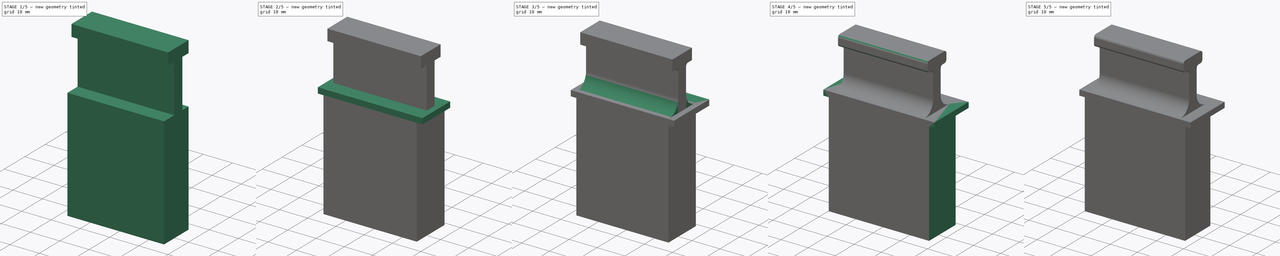
[diagram: build sequence overview — one tinted view per stage of 5, left to right]
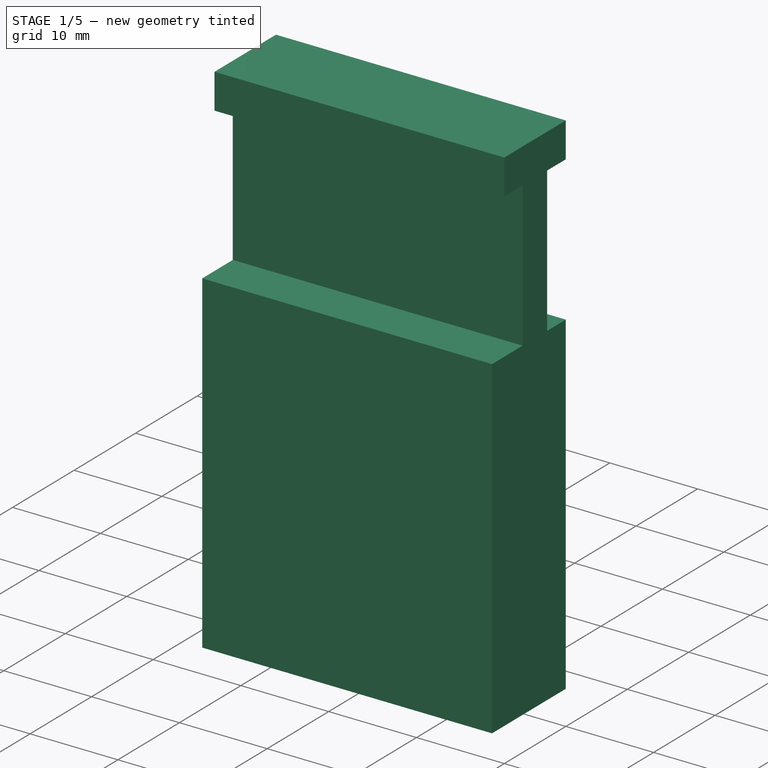
[diagram: stage 1 of 5 — iso view after this stage's code; geometry added in this stage tinted green]
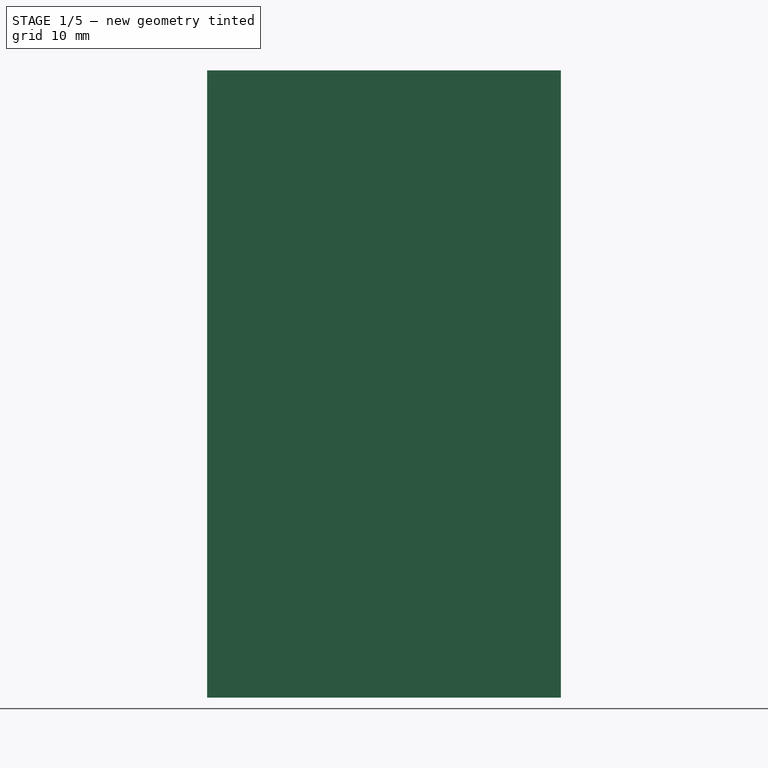
[diagram: stage 1 of 5 — front view after this stage's code; geometry added in this stage tinted green]
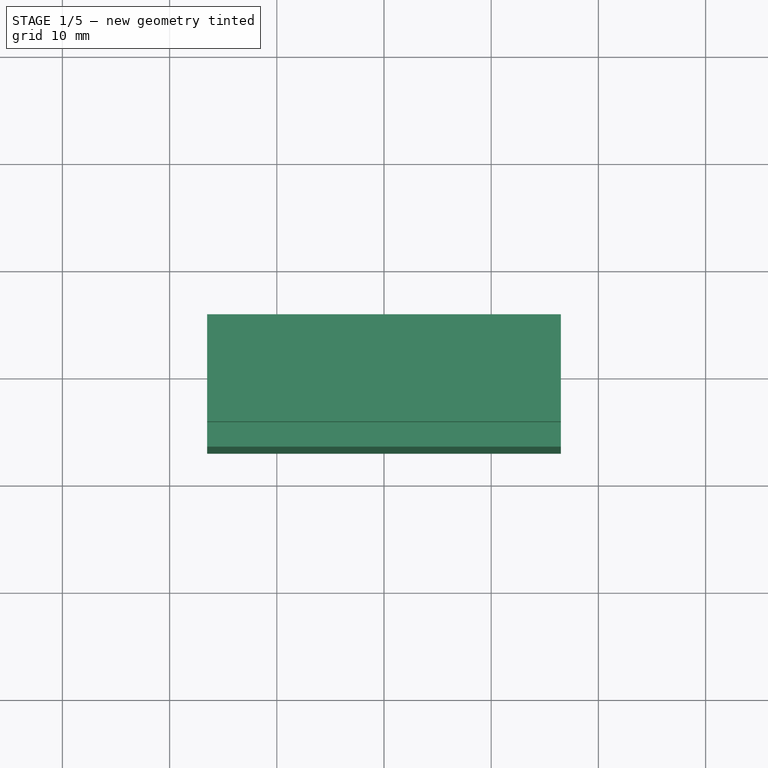
[diagram: stage 1 of 5 — top view after this stage's code; geometry added in this stage tinted green]
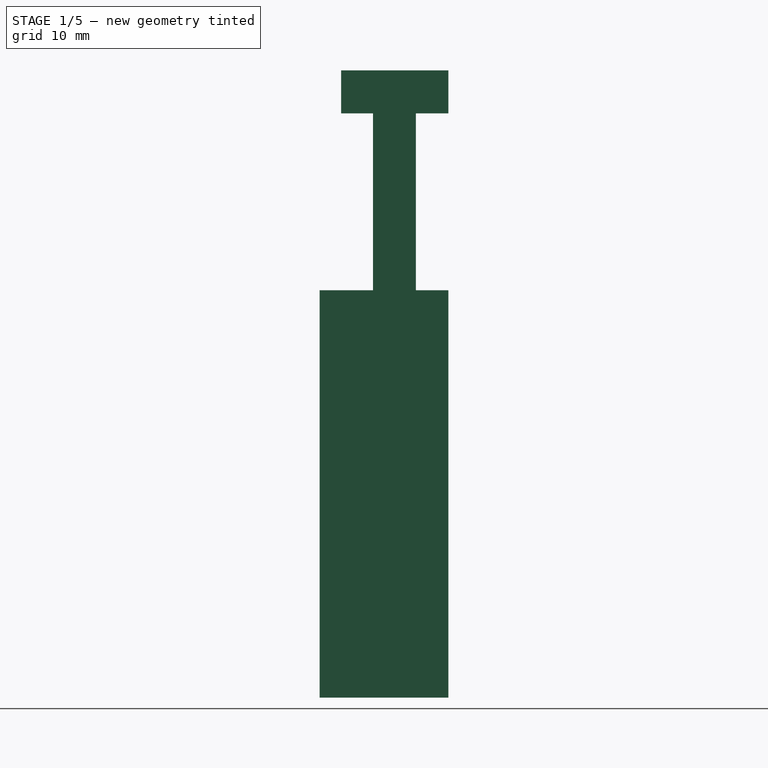
[diagram: stage 1 of 5 — right view after this stage's code; geometry added in this stage tinted green]
FCSTD DOCUMENT  (FreeCAD 1.0R38806 (Git))
Label: SmallStdd
License: All rights reserved
LicenseURL: https://en.wikipedia.org/wiki/All_rights_reserved
objects: PartDesign::Pad×13, Sketcher::SketchObject×11, PartDesign::Fillet×9, PartDesign::Pocket×5, PartDesign::Body×1
note: 104 computed .brp shape members not serialized (recipe doc carries the construction recipe); baked Part::Feature solids carry a one-line shape summary decoded from their .brp

FEATURE [Sketcher::SketchObject] Sketch
  ArcFitTolerance = 1e-06
  AttachmentSupport = -> [XY_Plane]
  FullyConstrained = true
  MakeInternals = false
  MapMode = 5
  sketch-geometry (5):
    g0: LineSegment StartX=-16.5 StartY=-7 StartZ=0 EndX=16.5 EndY=-7 EndZ=0
    g1: LineSegment StartX=16.5 StartY=-7 StartZ=0 EndX=16.5 EndY=7 EndZ=0
    g2: LineSegment StartX=16.5 StartY=7 StartZ=0 EndX=-16.5 EndY=7 EndZ=0
    g3: LineSegment StartX=-16.5 StartY=7 StartZ=0 EndX=-16.5 EndY=-7 EndZ=0
    g4: GeomPoint [constr] X=0 Y=0 Z=0
  constraints (12):
    c: Coincident(g0,g1)
    c: Coincident(g1,g2)
    c: Coincident(g2,g3)
    c: Coincident(g3,g0)
    c: Horizontal(g0)
    c: Horizontal(g2)
    c: Vertical(g1)
    c: Vertical(g3)
    c: Symmetric(g2,g0,g4)
    c: Distance(g1,g3) = 33
    c: Distance(g0,g2) = 14
    c: Coincident(g4,g-1)
FEATURE [PartDesign::Pad] Pad
  Direction = (0,0,1)
  Length = 38
  Length2 = 10
  Profile = -> Sketch
  ReferenceAxis = -> Sketch [N_Axis]
  Refine = true
  Suppressed = false
  Type = 0
FEATURE [Sketcher::SketchObject] Sketch001
  ArcFitTolerance = 1e-06
  AttachmentSupport = -> [Pad]
  FullyConstrained = false
  MakeInternals = false
  MapMode = 5
  Placement = pos=(16.5,0,0) rot=(0.57735,0.57735,0.57735;2.0944rad)
  sketch-geometry (4):
    g0: LineSegment StartX=-2.02597 StartY=0 StartZ=0 EndX=1.97403 EndY=0 EndZ=0
    g1: LineSegment StartX=1.97403 StartY=0 StartZ=0 EndX=1.97403 EndY=58.5 EndZ=0
    g2: LineSegment StartX=1.97403 StartY=58.5 StartZ=0 EndX=-2.02597 EndY=58.5 EndZ=0
    g3: LineSegment StartX=-2.02597 StartY=58.5 StartZ=0 EndX=-2.02597 EndY=0 EndZ=0
  constraints (11):
    c: Coincident(g0,g1)
    c: Coincident(g1,g2)
    c: Coincident(g2,g3)
    c: Coincident(g3,g0)
    c: Horizontal(g0)
    c: Horizontal(g2)
    c: Vertical(g1)
    c: Vertical(g3)
    c: Distance(g1,g3) = 4
    c: Distance(g0,g2) = 58.5
    c: PointOnObject(g0,g-1)
FEATURE [PartDesign::Pad] Pad001
  BaseFeature = -> Pad
  Direction = (1,0,0)
  Length = 33
  Length2 = 10
  Profile = -> Sketch001
  ReferenceAxis = -> Sketch001 [N_Axis]
  Refine = true
  Reversed = true
  Suppressed = false
  Type = 0
FEATURE [Sketcher::SketchObject] Sketch002
  ArcFitTolerance = 1e-06
  AttachmentSupport = -> [Pad001]
  FullyConstrained = true
  MakeInternals = false
  MapMode = 5
  Placement = pos=(16.5,0,0) rot=(0.57735,0.57735,0.57735;2.0944rad)
  sketch-geometry (5):
    g0: LineSegment StartX=-5 StartY=54.5 StartZ=0 EndX=5 EndY=54.5 EndZ=0
    g1: LineSegment StartX=5 StartY=54.5 StartZ=0 EndX=5 EndY=58.5 EndZ=0
    g2: LineSegment StartX=5 StartY=58.5 StartZ=0 EndX=-5 EndY=58.5 EndZ=0
    g3: LineSegment StartX=-5 StartY=58.5 StartZ=0 EndX=-5 EndY=54.5 EndZ=0
    g4: GeomPoint [constr] X=0 Y=56.5 Z=0
  constraints (13):
    c: Coincident(g0,g1)
    c: Coincident(g1,g2)
    c: Coincident(g2,g3)
    c: Coincident(g3,g0)
    c: Horizontal(g0)
    c: Horizontal(g2)
    c: Vertical(g1)
    c: Vertical(g3)
    c: Symmetric(g2,g0,g4)
    c: Distance(g1,g3) = 10
    c: Distance(g0,g2) = 4
    c: PointOnObject(g4,g-2)
    c: DistanceY(g-1,g4) = 56.5
FEATURE [PartDesign::Pad] Pad002
  BaseFeature = -> Pad001
  Direction = (1,0,0)
  Length = 33
  Length2 = 10
  Profile = -> Sketch002
  ReferenceAxis = -> Sketch002 [N_Axis]
  Refine = true
  Reversed = true
  Suppressed = false
  Type = 0
FEATURE [Sketcher::SketchObject] Sketch003
  ArcFitTolerance = 1e-06
  AttachmentSupport = -> [Pad002]
  FullyConstrained = true
  MakeInternals = false
  MapMode = 5
  Placement = pos=(0,7,0) rot=(0,0.707107,0.707107;3.14159rad)
  sketch-geometry (15):
    g0: LineSegment StartX=-16 StartY=30.8 StartZ=0 EndX=16 EndY=30.8 EndZ=0
    g1: LineSegment StartX=16 StartY=30.8 StartZ=0 EndX=16 EndY=35.8 EndZ=0
    g2: LineSegment StartX=16 StartY=35.8 StartZ=0 EndX=-16 EndY=35.8 EndZ=0
    g3: LineSegment StartX=-16 StartY=35.8 StartZ=0 EndX=-16 EndY=30.8 EndZ=0
    g4: GeomPoint [constr] X=0 Y=33.3 Z=0
    g5: LineSegment StartX=-16 StartY=19.4 StartZ=0 EndX=16 EndY=19.4 EndZ=0
    g6: LineSegment StartX=16 StartY=19.4 StartZ=0 EndX=16 EndY=28.4 EndZ=0
    g7: LineSegment StartX=16 StartY=28.4 StartZ=0 EndX=-16 EndY=28.4 EndZ=0
    g8: LineSegment StartX=-16 StartY=28.4 StartZ=0 EndX=-16 EndY=19.4 EndZ=0
    g9: GeomPoint [constr] X=0 Y=23.9 Z=0
    g10: LineSegment StartX=-16 StartY=3 StartZ=0 EndX=16 EndY=3 EndZ=0
    g11: LineSegment StartX=16 StartY=3 StartZ=0 EndX=16 EndY=17 EndZ=0
    g12: LineSegment StartX=16 StartY=17 StartZ=0 EndX=-16 EndY=17 EndZ=0
    g13: LineSegment StartX=-16 StartY=17 StartZ=0 EndX=-16 EndY=3 EndZ=0
    g14: GeomPoint [constr] X=0 Y=10 Z=0
  constraints (39):
    c: Coincident(g0,g1)
    c: Coincident(g1,g2)
    c: Coincident(g2,g3)
    c: Coincident(g3,g0)
    c: Horizontal(g0)
    c: Horizontal(g2)
    c: Vertical(g1)
    c: Vertical(g3)
    c: Symmetric(g2,g0,g4)
    c: Distance(g1,g3) = 32
    c: Distance(g0,g2) = 5
    c: PointOnObject(g4,g-2)
    c: Coincident(g5,g6)
    c: Coincident(g6,g7)
    c: Coincident(g7,g8)
    c: Coincident(g8,g5)
    c: Horizontal(g5)
    c: Horizontal(g7)
    c: Vertical(g6)
    c: Vertical(g8)
    c: Symmetric(g7,g5,g9)
    c: Distance(g6,g8) = 32
    c: Distance(g5,g7) = 9
    c: PointOnObject(g9,g-2)
    c: Coincident(g10,g11)
    c: Coincident(g11,g12)
    c: Coincident(g12,g13)
    c: Coincident(g13,g10)
    c: Horizontal(g10)
    c: Horizontal(g12)
    c: Vertical(g11)
    c: Vertical(g13)
    c: Symmetric(g12,g10,g14)
    c: Distance(g11,g13) = 32
    c: Distance(g10,g12) = 14
    c: PointOnObject(g14,g-2)
    c: Distance(g-1,g10) = 3
    c: Distance(g12,g5) = 2.4
    c: Distance(g0,g7) = 2.4
FEATURE [PartDesign::Pocket] Pocket
  BaseFeature = -> Pad002
  Direction = (0,-1,2e-16)
  Length = 12
  Length2 = 5
  Profile = -> Sketch003
  ReferenceAxis = -> Sketch003 [N_Axis]
  Refine = true
  Suppressed = false
  Type = 0
FEATURE [PartDesign::Pocket] Pocket001
  BaseFeature = -> Pocket
  Direction = (0,-1,0)
  Length = 2
  Length2 = 5
  Profile = -> Pocket [Face14]
  Refine = true
  Suppressed = false
  Type = 0
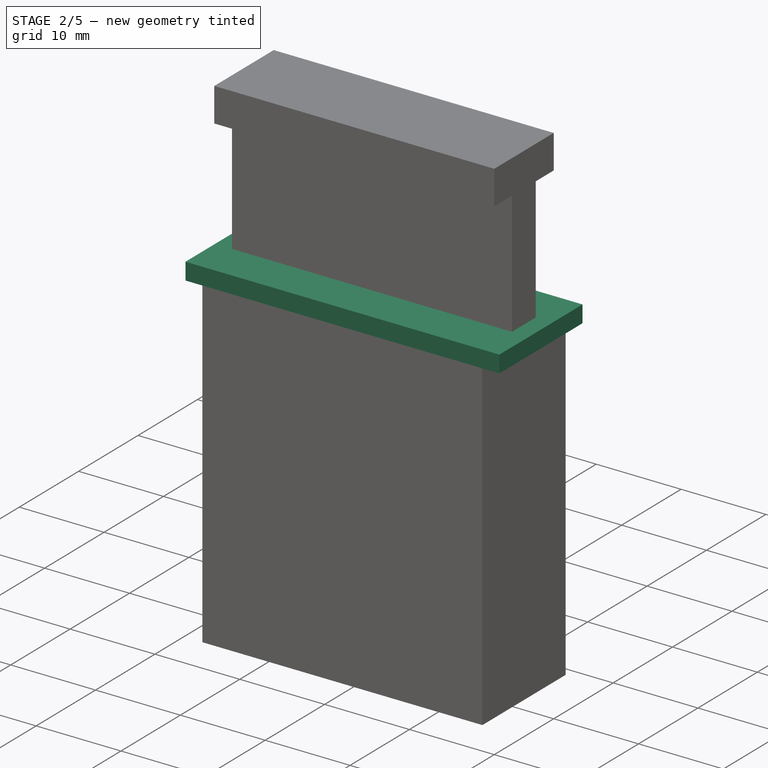
[diagram: stage 2 of 5 — iso view after this stage's code; geometry added in this stage tinted green]
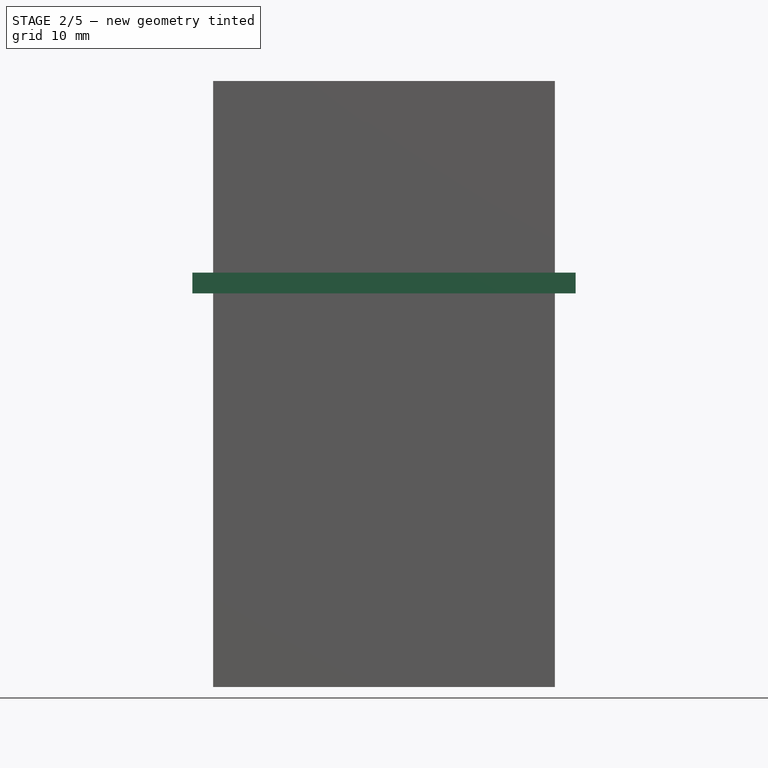
[diagram: stage 2 of 5 — front view after this stage's code; geometry added in this stage tinted green]
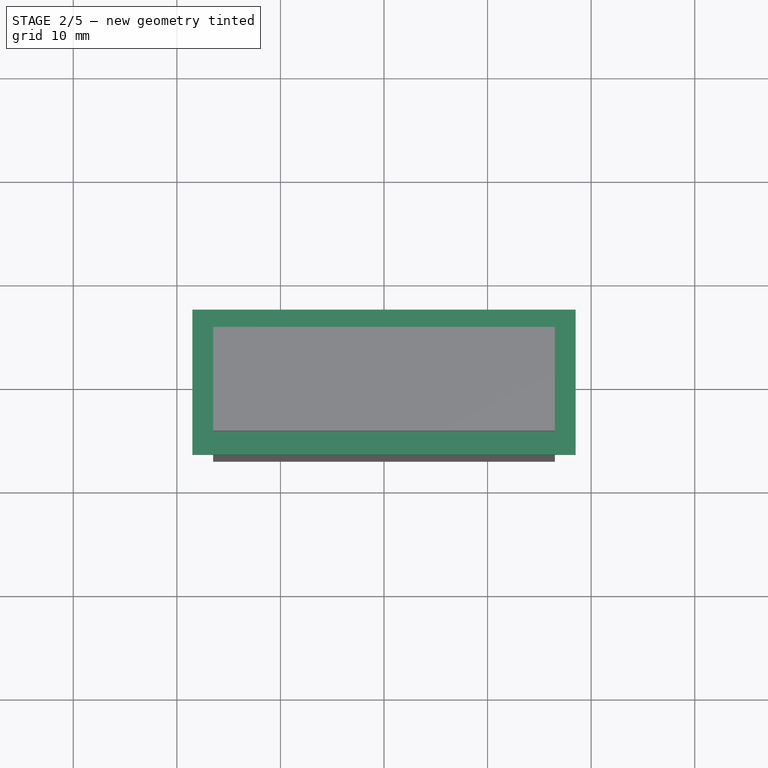
[diagram: stage 2 of 5 — top view after this stage's code; geometry added in this stage tinted green]
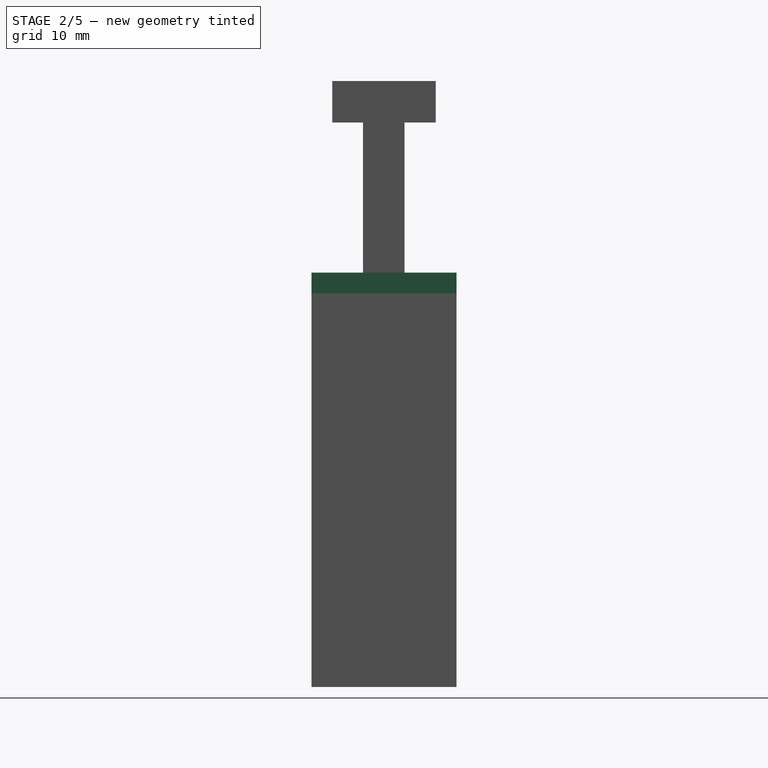
[diagram: stage 2 of 5 — right view after this stage's code; geometry added in this stage tinted green]
FEATURE [Sketcher::SketchObject] Sketch004
  ArcFitTolerance = 1e-06
  AttachmentSupport = -> [Pocket001]
  ExternalGeometry = -> [Pocket001]
  FullyConstrained = true
  MakeInternals = false
  MapMode = 5
  Placement = pos=(0,5,0) rot=(0,0.707107,0.707107;3.14159rad)
  sketch-geometry (19):
    g0: LineSegment StartX=-16 StartY=35.8 StartZ=0 EndX=-16 EndY=31.8 EndZ=0
    g1: LineSegment StartX=-16 StartY=31.8 StartZ=0 EndX=16 EndY=31.8 EndZ=0
    g2: LineSegment StartX=16 StartY=31.8 StartZ=0 EndX=16 EndY=35.8 EndZ=0
    g3: LineSegment StartX=16 StartY=35.8 StartZ=0 EndX=-16 EndY=35.8 EndZ=0
    g4: GeomPoint [constr] X=0 Y=33.8 Z=0
    g5: LineSegment StartX=-16 StartY=28.4 StartZ=0 EndX=-16 EndY=20.4 EndZ=0
    g6: LineSegment StartX=-16 StartY=20.4 StartZ=0 EndX=16 EndY=20.4 EndZ=0
    g7: LineSegment StartX=16 StartY=20.4 StartZ=0 EndX=16 EndY=28.4 EndZ=0
    g8: LineSegment StartX=16 StartY=28.4 StartZ=0 EndX=-16 EndY=28.4 EndZ=0
    g9: GeomPoint [constr] X=0 Y=24.4 Z=0
    g10: LineSegment StartX=-16 StartY=17 StartZ=0 EndX=-16 EndY=4 EndZ=0
    g11: LineSegment StartX=-16 StartY=4 StartZ=0 EndX=16 EndY=4 EndZ=0
    g12: LineSegment StartX=16 StartY=4 StartZ=0 EndX=16 EndY=17 EndZ=0
    g13: LineSegment StartX=16 StartY=17 StartZ=0 EndX=-16 EndY=17 EndZ=0
    g14: GeomPoint [constr] X=0 Y=10.5 Z=0
    g15: LineSegment StartX=-16.5 StartY=0 StartZ=0 EndX=16.5 EndY=0 EndZ=0
    g16: LineSegment StartX=16.5 StartY=0 StartZ=0 EndX=16.5 EndY=38 EndZ=0
    g17: LineSegment StartX=16.5 StartY=38 StartZ=0 EndX=-16.5 EndY=38 EndZ=0
    g18: LineSegment StartX=-16.5 StartY=38 StartZ=0 EndX=-16.5 EndY=0 EndZ=0
  constraints (49):
    c: Coincident(g0,g1)
    c: Coincident(g1,g2)
    c: Coincident(g2,g3)
    c: Coincident(g3,g0)
    c: Vertical(g0)
    c: Vertical(g2)
    c: Horizontal(g1)
    c: Horizontal(g3)
    c: Symmetric(g2,g0,g4)
    c: PointOnObject(g4,g-2)
    c: Coincident(g5,g6)
    c: Coincident(g6,g7)
    c: Coincident(g7,g8)
    c: Coincident(g8,g5)
    c: Vertical(g5)
    c: Vertical(g7)
    c: Horizontal(g6)
    c: Horizontal(g8)
    c: Symmetric(g7,g5,g9)
    c: PointOnObject(g9,g-2)
    c: Coincident(g10,g11)
    c: Coincident(g11,g12)
    c: Coincident(g12,g13)
    c: Coincident(g13,g10)
    c: Vertical(g10)
    c: Vertical(g12)
    c: Horizontal(g11)
    c: Horizontal(g13)
    c: Symmetric(g12,g10,g14)
    c: PointOnObject(g14,g-2)
    c: Coincident(g15,g16)
    c: Coincident(g16,g17)
    c: Coincident(g17,g18)
    c: Coincident(g18,g15)
    c: Horizontal(g15)
    c: Horizontal(g17)
    c: Vertical(g16)
    c: Vertical(g18)
    c: Coincident(g15,g-6)
    c: Coincident(g16,g-5)
    c: Distance(g13,g13) = 32  'CutW'
    c: Equal(g11,g6)
    c: Equal(g11,g1)
    c: DistanceY(g10,g10) = 13
    c: Distance(g15,g11) = 4
    c: DistanceY(g5,g5) = 8
    c: Distance(g13,g6) = 3.4
    c: DistanceY(g0,g0) = 4
    c: Distance(g8,g1) = 3.4
FEATURE [PartDesign::Pad] Pad003
  BaseFeature = -> Pocket001
  Direction = (0,1,-2e-16)
  Length = 2
  Length2 = 10
  Profile = -> Sketch004
  ReferenceAxis = -> Sketch004 [N_Axis]
  Refine = true
  Suppressed = false
  Type = 0
FEATURE [PartDesign::Pocket] Pocket002
  BaseFeature = -> Pad003
  Direction = (1,0,0)
  Length = 1
  Length2 = 5
  Profile = -> Pad003 [Face14]
  Refine = true
  Suppressed = false
  Type = 0
FEATURE [Sketcher::SketchObject] Sketch005
  ArcFitTolerance = 1e-06
  AttachmentSupport = -> [Pocket002]
  ExternalGeometry = -> [Pocket002]
  FullyConstrained = true
  MakeInternals = false
  MapMode = 5
  Placement = pos=(-15.5,0,0) rot=(0.57735,-0.57735,-0.57735;2.0944rad)
  sketch-geometry (9):
    g0: LineSegment StartX=-5 StartY=3 StartZ=0 EndX=-5 EndY=4 EndZ=0
    g1: LineSegment StartX=-5 StartY=4 StartZ=0 EndX=-6 EndY=4 EndZ=0
    g2: LineSegment StartX=-6 StartY=4 StartZ=0 EndX=-5 EndY=3 EndZ=0
    g3: LineSegment StartX=-5 StartY=19.4 StartZ=0 EndX=-5 EndY=20.4 EndZ=0
    g4: LineSegment StartX=-5 StartY=20.4 StartZ=0 EndX=-6 EndY=20.4 EndZ=0
    g5: LineSegment StartX=-6 StartY=20.4 StartZ=0 EndX=-5 EndY=19.4 EndZ=0
    g6: LineSegment StartX=-5 StartY=30.8 StartZ=0 EndX=-5 EndY=31.8 EndZ=0
    g7: LineSegment StartX=-5 StartY=31.8 StartZ=0 EndX=-6 EndY=31.8 EndZ=0
    g8: LineSegment StartX=-6 StartY=31.8 StartZ=0 EndX=-5 EndY=30.8 EndZ=0
  constraints (18):
    c: Coincident(g0,g-7)
    c: Coincident(g0,g-8)
    c: Coincident(g1,g0)
    c: Symmetric(g-8,g-8,g1)
    c: Coincident(g2,g1)
    c: Coincident(g2,g0)
    c: Coincident(g3,g-5)
    c: Coincident(g3,g-6)
    c: Coincident(g4,g3)
    c: Symmetric(g-6,g-6,g4)
    c: Coincident(g5,g4)
    c: Coincident(g5,g3)
    c: Coincident(g6,g-4)
    c: Coincident(g6,g-3)
    c: Coincident(g7,g6)
    c: Symmetric(g-3,g-3,g7)
    c: Coincident(g8,g7)
    c: Coincident(g8,g6)
FEATURE [PartDesign::Pocket] Pocket003
  BaseFeature = -> Pocket002
  Direction = (1,0,0)
  Length = 0
  Length2 = 5
  Profile = -> Sketch005
  ReferenceAxis = -> Sketch005 [N_Axis]
  Refine = true
  Suppressed = false
  Type = 3
  UpToFace = -> Pocket002 [Face12]
FEATURE [Sketcher::SketchObject] Sketch006
  ArcFitTolerance = 1e-06
  AttachmentSupport = -> [Pocket003]
  ExternalGeometry = -> [Pocket003]
  FullyConstrained = true
  MakeInternals = false
  MapMode = 5
  Placement = pos=(-15.5,0,0) rot=(0.57735,-0.57735,-0.57735;2.0944rad)
  sketch-geometry (4):
    g0: LineSegment StartX=-7 StartY=0 StartZ=0 EndX=7 EndY=0 EndZ=0
    g1: LineSegment StartX=7 StartY=0 StartZ=0 EndX=7 EndY=38 EndZ=0
    g2: LineSegment StartX=7 StartY=38 StartZ=0 EndX=-7 EndY=38 EndZ=0
    g3: LineSegment StartX=-7 StartY=38 StartZ=0 EndX=-7 EndY=0 EndZ=0
  constraints (10):
    c: Coincident(g0,g1)
    c: Coincident(g1,g2)
    c: Coincident(g2,g3)
    c: Coincident(g3,g0)
    c: Horizontal(g0)
    c: Horizontal(g2)
    c: Vertical(g1)
    c: Vertical(g3)
    c: Coincident(g0,g-4)
    c: Coincident(g1,g-3)
FEATURE [PartDesign::Pad] Pad004
  BaseFeature = -> Pocket003
  Direction = (-1,0,0)
  Length = 1
  Length2 = 10
  Profile = -> Sketch006
  ReferenceAxis = -> Sketch006 [N_Axis]
  Refine = true
  Suppressed = false
  Type = 0
FEATURE [PartDesign::Pad] Pad005
  BaseFeature = -> Pad004
  Direction = (-1,0,0)
  Length = 10
  Length2 = 10
  Profile = -> Pad004 [Face9]
  Refine = true
  Suppressed = false
  Type = 3
  UpToFace = -> Pad004 [Face11]
FEATURE [Sketcher::SketchObject] Sketch007
  ArcFitTolerance = 1e-06
  AttachmentSupport = -> [Pad005]
  ExternalGeometry = -> [Pad005]
  FullyConstrained = true
  MakeInternals = false
  MapMode = 5
  Placement = pos=(0,0,38) rot=(0,0,1;0rad)
  sketch-geometry (5):
    g0: LineSegment StartX=-18.5 StartY=-7 StartZ=0 EndX=18.5 EndY=-7 EndZ=0
    g1: LineSegment StartX=18.5 StartY=-7 StartZ=0 EndX=18.5 EndY=7 EndZ=0
    g2: LineSegment StartX=18.5 StartY=7 StartZ=0 EndX=-18.5 EndY=7 EndZ=0
    g3: LineSegment StartX=-18.5 StartY=7 StartZ=0 EndX=-18.5 EndY=-7 EndZ=0
    g4: GeomPoint [constr] X=0 Y=0 Z=0
  constraints (12):
    c: Coincident(g0,g1)
    c: Coincident(g1,g2)
    c: Coincident(g2,g3)
    c: Coincident(g3,g0)
    c: Horizontal(g0)
    c: Horizontal(g2)
    c: Vertical(g1)
    c: Vertical(g3)
    c: Symmetric(g2,g0,g4)
    c: Distance(g1,g3) = 37
    c: Distance(g0,g2) = 14
    c: Coincident(g4,g-1)
FEATURE [PartDesign::Pad] Pad006
  BaseFeature = -> Pad005
  Direction = (0,0,1)
  Length = 2
  Length2 = 10
  Profile = -> Sketch007
  ReferenceAxis = -> Sketch007 [N_Axis]
  Refine = true
  Suppressed = false
  Type = 0
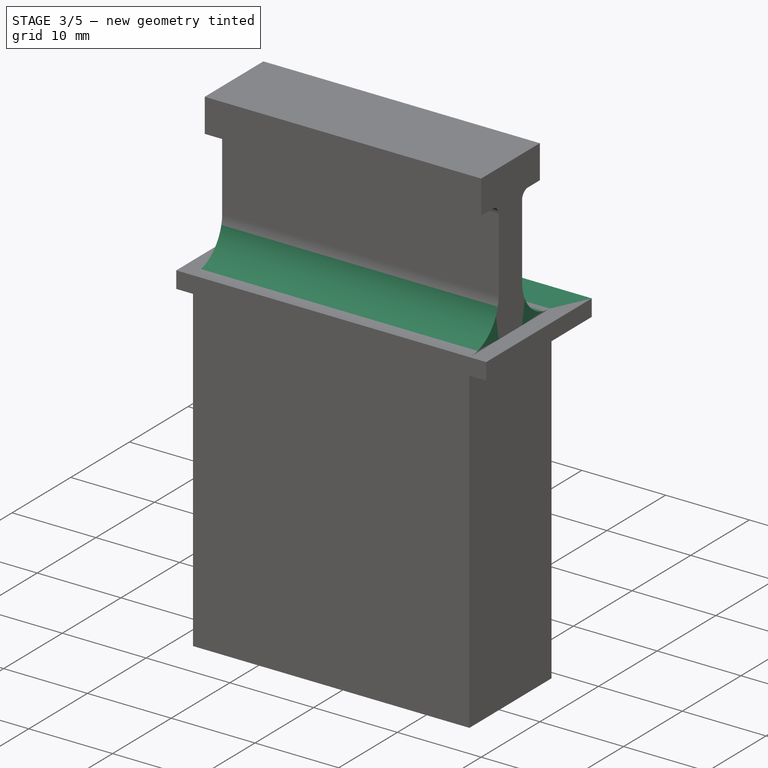
[diagram: stage 3 of 5 — iso view after this stage's code; geometry added in this stage tinted green]
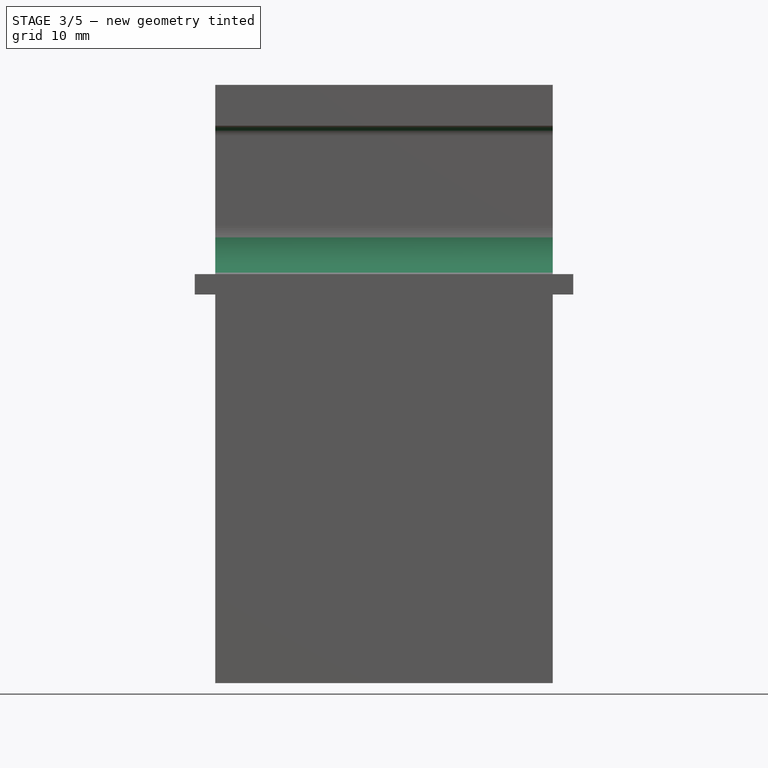
[diagram: stage 3 of 5 — front view after this stage's code; geometry added in this stage tinted green]
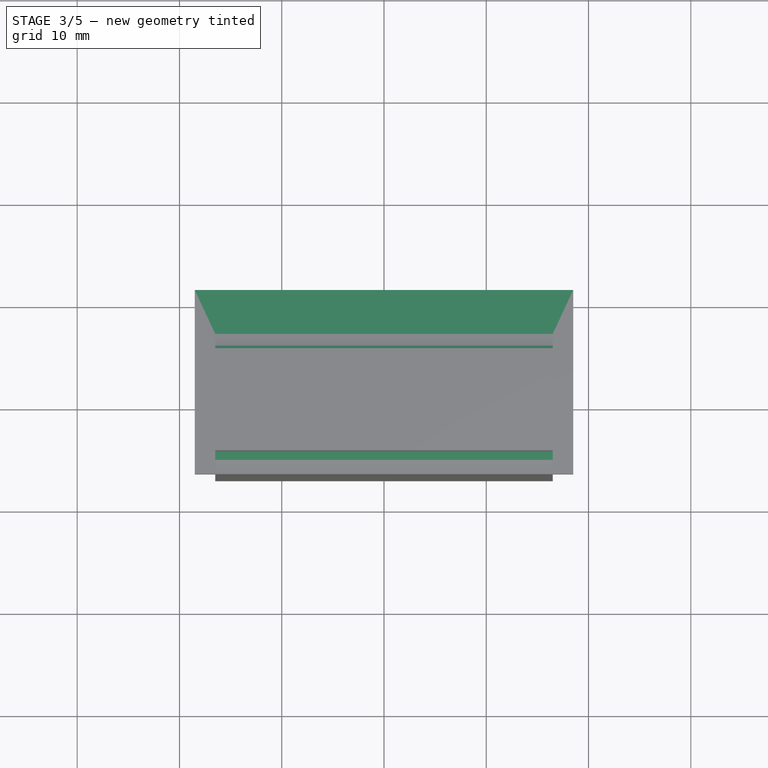
[diagram: stage 3 of 5 — top view after this stage's code; geometry added in this stage tinted green]
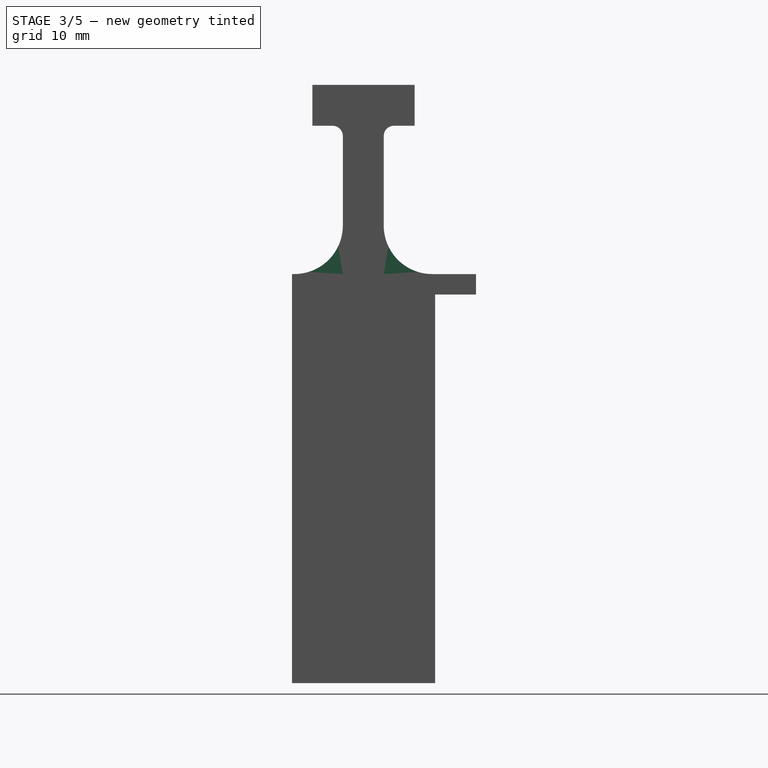
[diagram: stage 3 of 5 — right view after this stage's code; geometry added in this stage tinted green]
FEATURE [Sketcher::SketchObject] Sketch008
  ArcFitTolerance = 1e-06
  AttachmentSupport = -> [Pad006]
  ExternalGeometry = -> [Pad006]
  FullyConstrained = true
  MakeInternals = false
  MapMode = 5
  Placement = pos=(0,7,0) rot=(0,0.707107,0.707107;3.14159rad)
  sketch-geometry (4):
    g0: LineSegment StartX=-18.5 StartY=40 StartZ=0 EndX=-18.5 EndY=38 EndZ=0
    g1: LineSegment StartX=-18.5 StartY=38 StartZ=0 EndX=18.5 EndY=38 EndZ=0
    g2: LineSegment StartX=18.5 StartY=38 StartZ=0 EndX=18.5 EndY=40 EndZ=0
    g3: LineSegment StartX=18.5 StartY=40 StartZ=0 EndX=-18.5 EndY=40 EndZ=0
  constraints (11):
    c: Coincident(g0,g1)
    c: Coincident(g1,g2)
    c: Coincident(g2,g3)
    c: Coincident(g3,g0)
    c: Vertical(g0)
    c: Vertical(g2)
    c: Horizontal(g1)
    c: Horizontal(g3)
    c: Distance(g0,g2) = 37
    c: Distance(g1,g3) = 2
    c: Coincident(g0,g-3)
FEATURE [PartDesign::Pad] Pad007
  BaseFeature = -> Pad006
  Direction = (0,1,-2e-16)
  Length = 4
  Length2 = 10
  Profile = -> Sketch008
  ReferenceAxis = -> Sketch008 [N_Axis]
  Refine = true
  Suppressed = false
  Type = 0
FEATURE [PartDesign::Fillet] Fillet
  Base = -> Pad007 [Edge81]
  BaseFeature = -> Pad007
  Radius = 4.74
  Refine = true
  SupportTransform = false
  Suppressed = false
  UseAllEdges = false
FEATURE [PartDesign::Fillet] Fillet001
  Base = -> Fillet [Edge4]
  BaseFeature = -> Fillet
  Radius = 4.74
  Refine = true
  SupportTransform = false
  Suppressed = false
  UseAllEdges = false
FEATURE [PartDesign::Fillet] Fillet002
  Base = -> Fillet001 [Edge50]
  BaseFeature = -> Fillet001
  Radius = 1
  Refine = true
  SupportTransform = false
  Suppressed = false
  UseAllEdges = false
FEATURE [PartDesign::Fillet] Fillet003
  Base = -> Fillet002 [Edge38]
  BaseFeature = -> Fillet002
  Radius = 1
  Refine = true
  SupportTransform = false
  Suppressed = false
  UseAllEdges = false
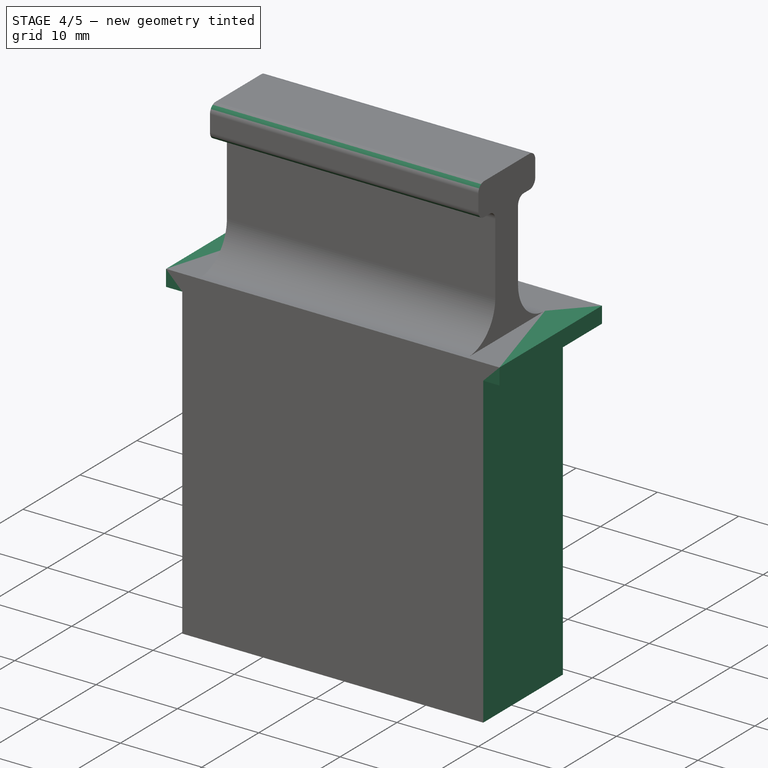
[diagram: stage 4 of 5 — iso view after this stage's code; geometry added in this stage tinted green]
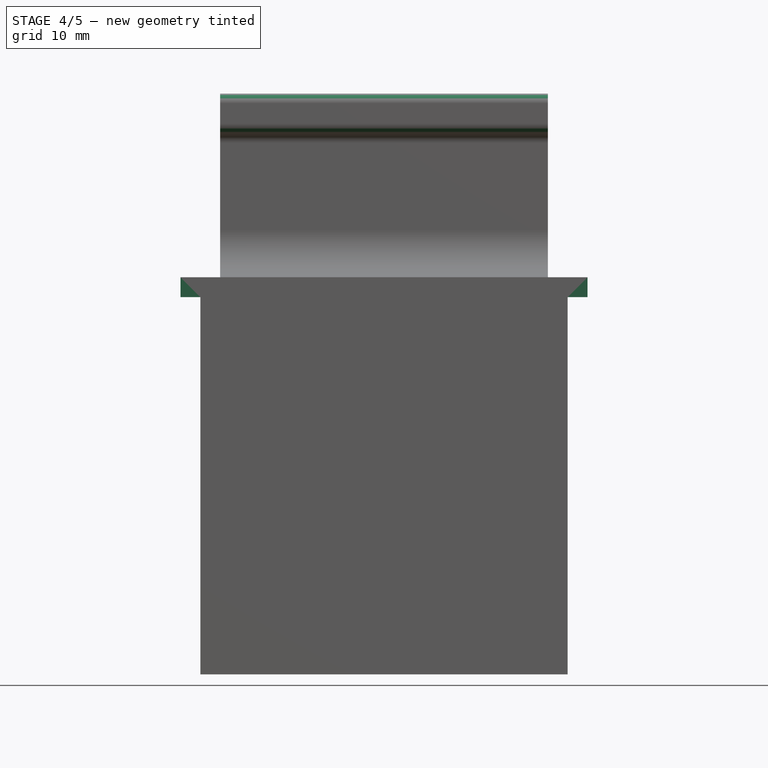
[diagram: stage 4 of 5 — front view after this stage's code; geometry added in this stage tinted green]
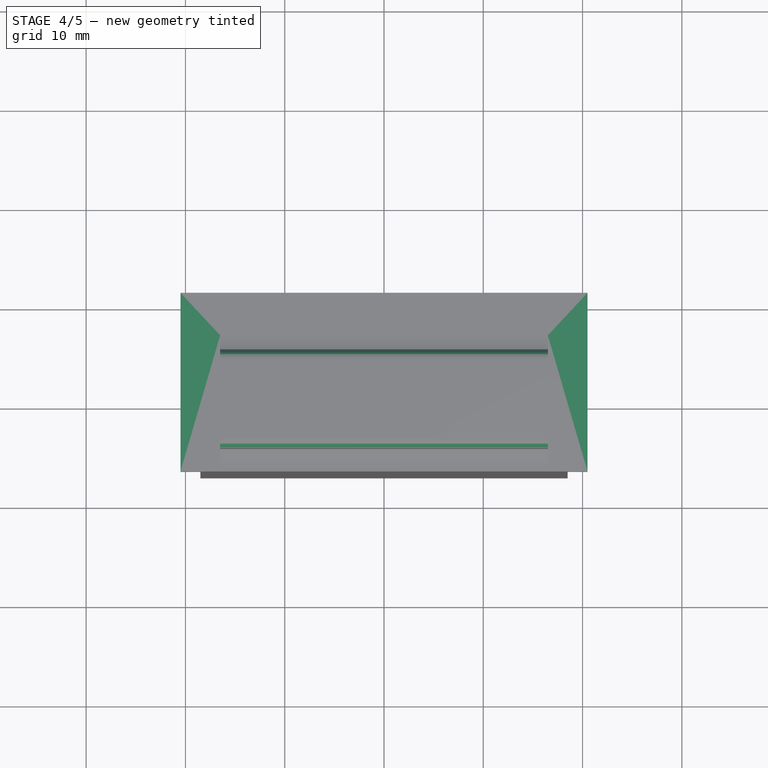
[diagram: stage 4 of 5 — top view after this stage's code; geometry added in this stage tinted green]
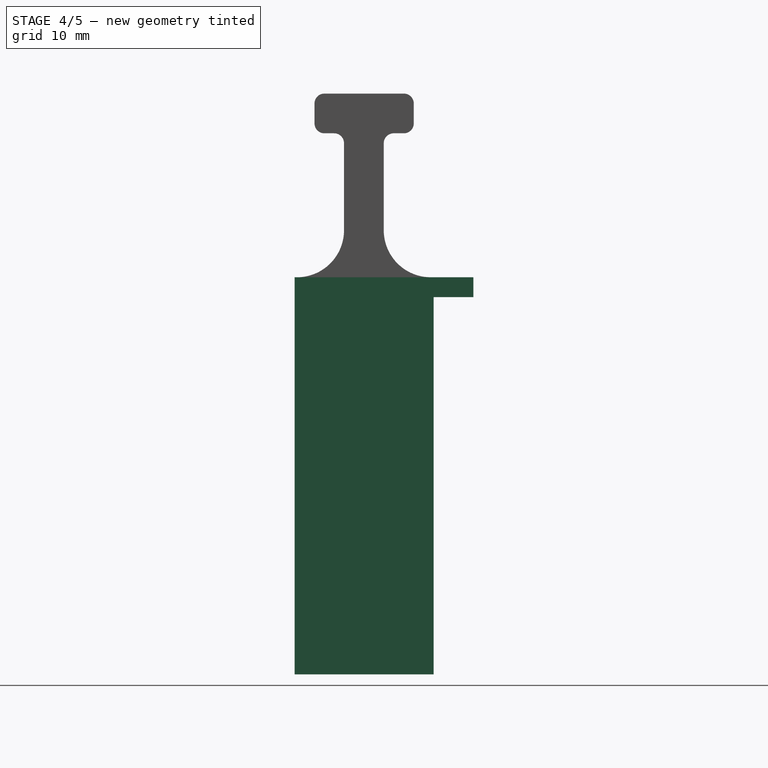
[diagram: stage 4 of 5 — right view after this stage's code; geometry added in this stage tinted green]
FEATURE [PartDesign::Fillet] Fillet004
  Base = -> Fillet003 [Edge17,Edge21]
  BaseFeature = -> Fillet003
  Radius = 1
  Refine = true
  SupportTransform = false
  Suppressed = false
  UseAllEdges = false
FEATURE [PartDesign::Fillet] Fillet005
  Base = -> Fillet004 [Edge33,Edge43]
  BaseFeature = -> Fillet004
  Radius = 1
  Refine = true
  SupportTransform = false
  Suppressed = false
  UseAllEdges = false
FEATURE [PartDesign::Pad] Pad008
  BaseFeature = -> Fillet005
  Direction = (-1,0,0)
  Length = 2
  Length2 = 10
  Profile = -> Fillet005 [Face22]
  Refine = true
  Suppressed = false
  Type = 0
FEATURE [PartDesign::Pad] Pad009
  BaseFeature = -> Pad008
  Direction = (-1,0,0)
  Length = 2
  Length2 = 10
  Profile = -> Pad008 [Face3]
  Refine = true
  Suppressed = false
  Type = 0
FEATURE [PartDesign::Pad] Pad010
  BaseFeature = -> Pad009
  Direction = (1,0,0)
  Length = 2
  Length2 = 10
  Profile = -> Pad009 [Face3]
  Refine = true
  Suppressed = false
  Type = 0
FEATURE [PartDesign::Pad] Pad011
  BaseFeature = -> Pad010
  Direction = (1,0,0)
  Length = 2
  Length2 = 10
  Profile = -> Pad010 [Face1]
  Refine = true
  Suppressed = false
  Type = 0
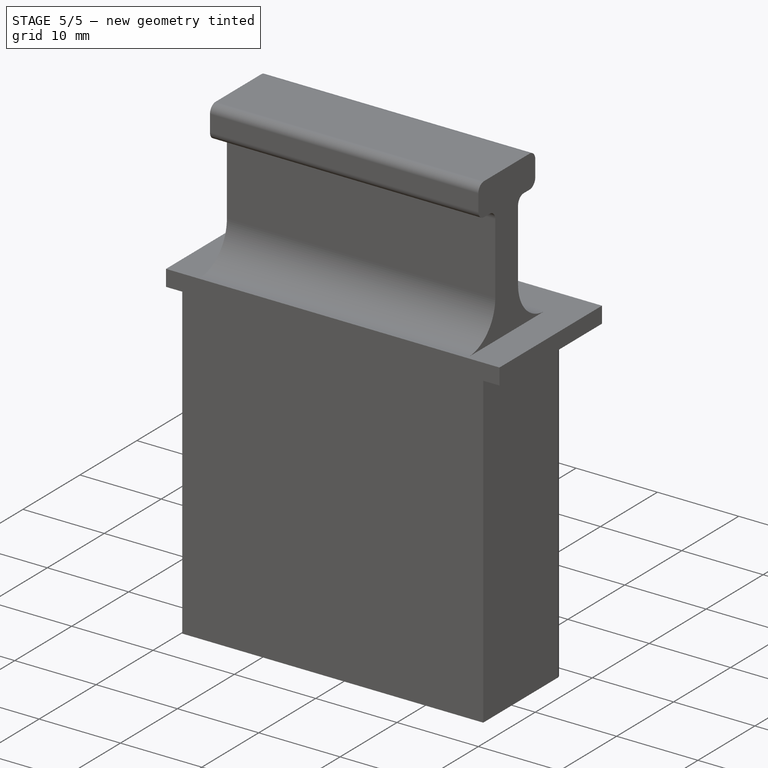
[diagram: stage 5 of 5 — iso view after this stage's code; geometry added in this stage tinted green]
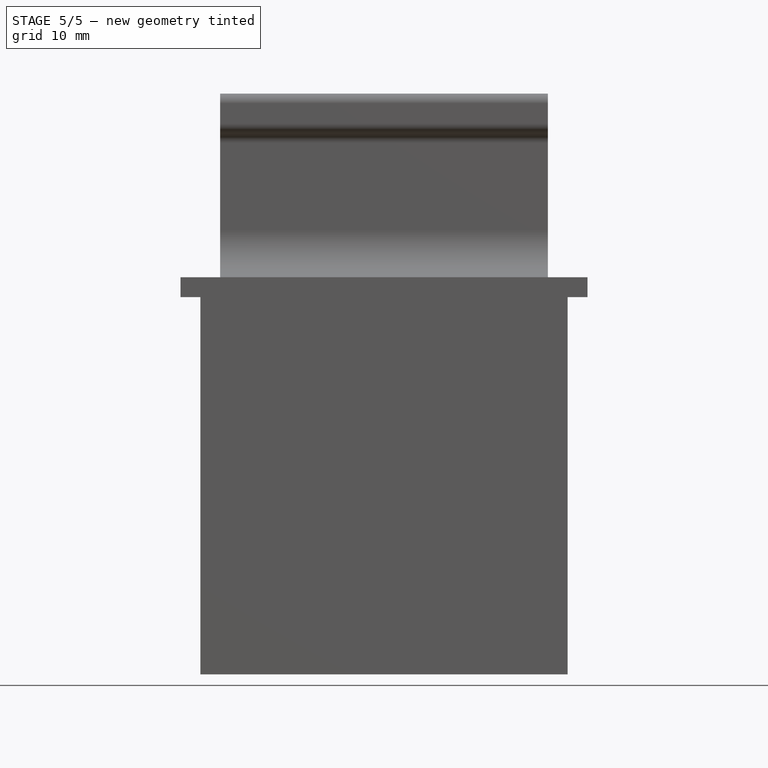
[diagram: stage 5 of 5 — front view after this stage's code; geometry added in this stage tinted green]
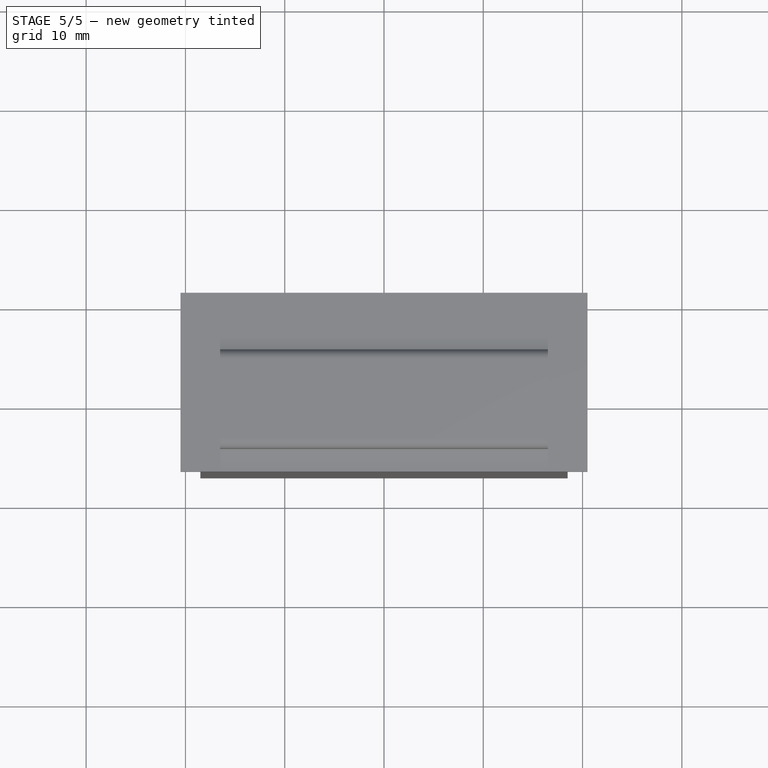
[diagram: stage 5 of 5 — top view after this stage's code; geometry added in this stage tinted green]
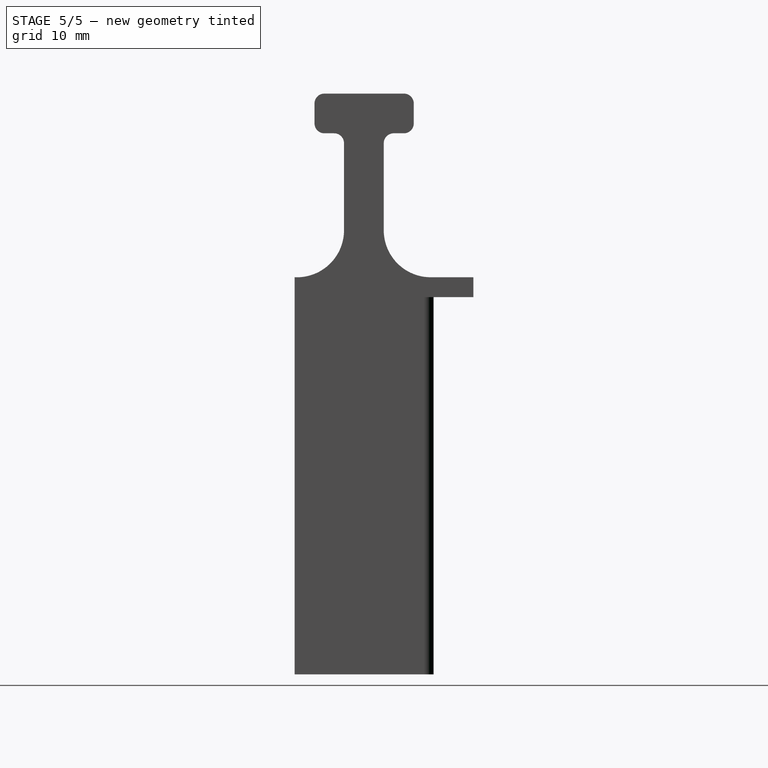
[diagram: stage 5 of 5 — right view after this stage's code; geometry added in this stage tinted green]
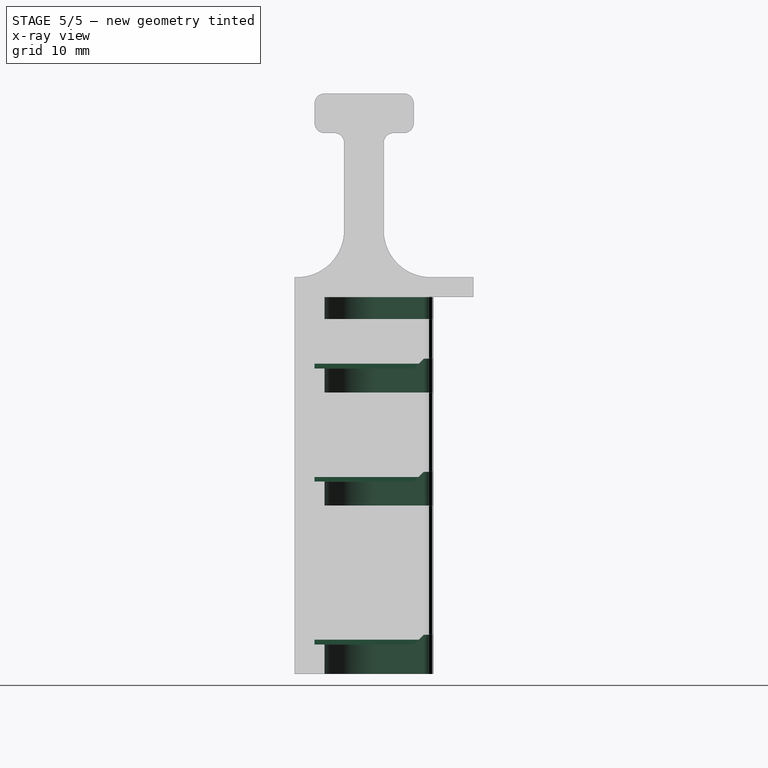
[diagram: stage 5 of 5 — x-ray composite at the right view; earlier geometry ghosted, this stage's added geometry solid]
FEATURE [Sketcher::SketchObject] Sketch009
  ArcFitTolerance = 1e-06
  AttachmentSupport = -> [Pad011]
  ExternalGeometry = -> [Pad011]
  FullyConstrained = true
  MakeInternals = false
  MapMode = 5
  Placement = pos=(0,0,0) rot=(1,0,0;3.14159rad)
  sketch-geometry (4):
    g0: LineSegment StartX=-10 StartY=-7 StartZ=0 EndX=10 EndY=-7 EndZ=0
    g1: LineSegment StartX=-10 StartY=-7 StartZ=0 EndX=-10 EndY=4 EndZ=0
    g2: LineSegment StartX=-10 StartY=4 StartZ=0 EndX=10 EndY=4 EndZ=0
    g3: LineSegment StartX=10 StartY=-7 StartZ=0 EndX=10 EndY=4 EndZ=0
  constraints (12):
    c: Distance(g0) = 20
    c: PointOnObject(g0,g-3)
    c: PointOnObject(g0,g-3)
    c: DistanceX(g-3,g0) = 8.5
    c: Distance(g1) = 11
    c: Coincident(g1,g0)
    c: Vertical(g1)
    c: Distance(g2) = 20
    c: Coincident(g2,g1)
    c: Horizontal(g2)
    c: Coincident(g3,g0)
    c: Coincident(g3,g2)
FEATURE [PartDesign::Pocket] Pocket004
  BaseFeature = -> Pad011
  Direction = (0,0,1)
  Length = 0
  Length2 = 5
  Profile = -> Sketch009
  ReferenceAxis = -> Sketch009 [N_Axis]
  Refine = true
  Suppressed = false
  Type = 3
  UpToFace = -> Pad011 [Face1]
FEATURE [PartDesign::Fillet] Fillet006
  Base = -> Pocket004 [Edge105,Edge90,Edge75,Edge60,Edge107,Edge116,Edge125,Edge134]
  BaseFeature = -> Pocket004
  Radius = 5
  Refine = true
  SupportTransform = false
  Suppressed = false
  UseAllEdges = false
FEATURE [PartDesign::Fillet] Fillet007
  Base = -> Fillet006 [Edge61,Edge57,Edge53,Edge44,Edge18,Edge22,Edge26,Edge12]
  BaseFeature = -> Fillet006
  Radius = 1
  Refine = true
  SupportTransform = false
  Suppressed = false
  UseAllEdges = false
FEATURE [PartDesign::Fillet] Fillet008
  Base = -> Fillet007 [Edge26,Edge50]
  BaseFeature = -> Fillet007
  Radius = 1
  Refine = true
  SupportTransform = false
  Suppressed = false
  UseAllEdges = false
FEATURE [Sketcher::SketchObject] Sketch010
  ArcFitTolerance = 1e-06
  AttachmentSupport = -> [Fillet008]
  ExternalGeometry = -> [Fillet008]
  FullyConstrained = true
  MakeInternals = false
  MapMode = 5
  Placement = pos=(0,-5,0) rot=(0,0.707107,0.707107;3.14159rad)
  sketch-geometry (48):
    g0: LineSegment StartX=-13.5 StartY=31.3 StartZ=0 EndX=-14.5 EndY=31.3 EndZ=0
    g1: LineSegment StartX=-14.5 StartY=31.3 StartZ=0 EndX=-14.5 EndY=30.8 EndZ=0
    g2: LineSegment StartX=-14.5 StartY=30.8 StartZ=0 EndX=-13.5 EndY=30.8 EndZ=0
    g3: LineSegment StartX=-13.5 StartY=30.8 StartZ=0 EndX=-13.5 EndY=31.3 EndZ=0
    g4: LineSegment StartX=14.5 StartY=3.5 StartZ=0 EndX=13.5 EndY=3.5 EndZ=0
    g5: LineSegment StartX=13.5 StartY=3.5 StartZ=0 EndX=13.5 EndY=3 EndZ=0
    g6: LineSegment StartX=13.5 StartY=3 StartZ=0 EndX=14.5 EndY=3 EndZ=0
    g7: LineSegment StartX=14.5 StartY=3 StartZ=0 EndX=14.5 EndY=3.5 EndZ=0
    g8: LineSegment StartX=12.5 StartY=3.5 StartZ=0 EndX=11.5 EndY=3.5 EndZ=0
    g9: LineSegment StartX=11.5 StartY=3.5 StartZ=0 EndX=11.5 EndY=3 EndZ=0
    g10: LineSegment StartX=11.5 StartY=3 StartZ=0 EndX=12.5 EndY=3 EndZ=0
    g11: LineSegment StartX=12.5 StartY=3 StartZ=0 EndX=12.5 EndY=3.5 EndZ=0
    g12: LineSegment StartX=-11.5 StartY=3.5 StartZ=0 EndX=-12.5 EndY=3.5 EndZ=0
    g13: LineSegment StartX=-12.5 StartY=3.5 StartZ=0 EndX=-12.5 EndY=3 EndZ=0
    g14: LineSegment StartX=-12.5 StartY=3 StartZ=0 EndX=-11.5 EndY=3 EndZ=0
    g15: LineSegment StartX=-11.5 StartY=3 StartZ=0 EndX=-11.5 EndY=3.5 EndZ=0
    g16: LineSegment StartX=-13.5 StartY=3.5 StartZ=0 EndX=-14.5 EndY=3.5 EndZ=0
    g17: LineSegment StartX=-14.5 StartY=3.5 StartZ=0 EndX=-14.5 EndY=3 EndZ=0
    g18: LineSegment StartX=-14.5 StartY=3 StartZ=0 EndX=-13.5 EndY=3 EndZ=0
    g19: LineSegment StartX=-13.5 StartY=3 StartZ=0 EndX=-13.5 EndY=3.5 EndZ=0
    g20: LineSegment StartX=-13.5 StartY=19.9 StartZ=0 EndX=-14.5 EndY=19.9 EndZ=0
    g21: LineSegment StartX=-14.5 StartY=19.9 StartZ=0 EndX=-14.5 EndY=19.4 EndZ=0
    g22: LineSegment StartX=-14.5 StartY=19.4 StartZ=0 EndX=-13.5 EndY=19.4 EndZ=0
    g23: LineSegment StartX=-13.5 StartY=19.4 StartZ=0 EndX=-13.5 EndY=19.9 EndZ=0
    g24: LineSegment StartX=14.5 StartY=19.9 StartZ=0 EndX=13.5 EndY=19.9 EndZ=0
    g25: LineSegment StartX=13.5 StartY=19.9 StartZ=0 EndX=13.5 EndY=19.4 EndZ=0
    g26: LineSegment StartX=13.5 StartY=19.4 StartZ=0 EndX=14.5 EndY=19.4 EndZ=0
    g27: LineSegment StartX=14.5 StartY=19.4 StartZ=0 EndX=14.5 EndY=19.9 EndZ=0
    g28: LineSegment StartX=12.5 StartY=19.9 StartZ=0 EndX=11.5 EndY=19.9 EndZ=0
    g29: LineSegment StartX=11.5 StartY=19.9 StartZ=0 EndX=11.5 EndY=19.4 EndZ=0
    g30: LineSegment StartX=11.5 StartY=19.4 StartZ=0 EndX=12.5 EndY=19.4 EndZ=0
    g31: LineSegment StartX=12.5 StartY=19.4 StartZ=0 EndX=12.5 EndY=19.9 EndZ=0
    g32: LineSegment StartX=-11.5 StartY=19.9 StartZ=0 EndX=-12.5 EndY=19.9 EndZ=0
    g33: LineSegment StartX=-12.5 StartY=19.9 StartZ=0 EndX=-12.5 EndY=19.4 EndZ=0
    g34: LineSegment StartX=-12.5 StartY=19.4 StartZ=0 EndX=-11.5 EndY=19.4 EndZ=0
    g35: LineSegment StartX=-11.5 StartY=19.4 StartZ=0 EndX=-11.5 EndY=19.9 EndZ=0
    g36: LineSegment StartX=-11.5 StartY=31.3 StartZ=0 EndX=-12.5 EndY=31.3 EndZ=0
    g37: LineSegment StartX=-12.5 StartY=31.3 StartZ=0 EndX=-12.5 EndY=30.8 EndZ=0
    g38: LineSegment StartX=-12.5 StartY=30.8 StartZ=0 EndX=-11.5 EndY=30.8 EndZ=0
    g39: LineSegment StartX=-11.5 StartY=30.8 StartZ=0 EndX=-11.5 EndY=31.3 EndZ=0
    g40: LineSegment StartX=12.5 StartY=31.3 StartZ=0 EndX=11.5 EndY=31.3 EndZ=0
    g41: LineSegment StartX=11.5 StartY=31.3 StartZ=0 EndX=11.5 EndY=30.8 EndZ=0
    g42: LineSegment StartX=11.5 StartY=30.8 StartZ=0 EndX=12.5 EndY=30.8 EndZ=0
    g43: LineSegment StartX=12.5 StartY=30.8 StartZ=0 EndX=12.5 EndY=31.3 EndZ=0
    g44: LineSegment StartX=14.5 StartY=31.3 StartZ=0 EndX=13.5 EndY=31.3 EndZ=0
    g45: LineSegment StartX=13.5 StartY=31.3 StartZ=0 EndX=13.5 EndY=30.8 EndZ=0
    g46: LineSegment StartX=13.5 StartY=30.8 StartZ=0 EndX=14.5 EndY=30.8 EndZ=0
    g47: LineSegment StartX=14.5 StartY=30.8 StartZ=0 EndX=14.5 EndY=31.3 EndZ=0
  constraints (144):
    c: Coincident(g0,g1)
    c: Coincident(g1,g2)
    c: Coincident(g2,g3)
    c: Coincident(g3,g0)
    c: Horizontal(g0)
    c: Horizontal(g2)
    c: Vertical(g1)
    c: Vertical(g3)
    c: Distance(g1,g3) = 1
    c: Distance(g0,g2) = 0.5
    c: Coincident(g4,g5)
    c: Coincident(g5,g6)
    c: Coincident(g6,g7)
    c: Coincident(g7,g4)
    c: Horizontal(g4)
    c: Horizontal(g6)
    c: Vertical(g5)
    c: Vertical(g7)
    c: Distance(g5,g7) = 1
    c: Distance(g4,g6) = 0.5
    c: Coincident(g8,g9)
    c: Coincident(g9,g10)
    c: Coincident(g10,g11)
    c: Coincident(g11,g8)
    c: Horizontal(g8)
    c: Horizontal(g10)
    c: Vertical(g9)
    c: Vertical(g11)
    c: Distance(g9,g11) = 1
    c: Distance(g8,g10) = 0.5
    c: Coincident(g12,g13)
    c: Coincident(g13,g14)
    c: Coincident(g14,g15)
    c: Coincident(g15,g12)
    c: Horizontal(g12)
    c: Horizontal(g14)
    c: Vertical(g13)
    c: Vertical(g15)
    c: Distance(g13,g15) = 1
    c: Distance(g12,g14) = 0.5
    c: Coincident(g16,g17)
    c: Coincident(g17,g18)
    c: Coincident(g18,g19)
    c: Coincident(g19,g16)
    c: Horizontal(g16)
    c: Horizontal(g18)
    c: Vertical(g17)
    c: Vertical(g19)
    c: Distance(g17,g19) = 1
    c: Distance(g16,g18) = 0.5
    c: Coincident(g20,g21)
    c: Coincident(g21,g22)
    c: Coincident(g22,g23)
    c: Coincident(g23,g20)
    c: Horizontal(g20)
    c: Horizontal(g22)
    c: Vertical(g21)
    c: Vertical(g23)
    c: Distance(g21,g23) = 1
    c: Distance(g20,g22) = 0.5
    c: Coincident(g24,g25)
    c: Coincident(g25,g26)
    c: Coincident(g26,g27)
    c: Coincident(g27,g24)
    c: Horizontal(g24)
    c: Horizontal(g26)
    c: Vertical(g25)
    c: Vertical(g27)
    c: Distance(g25,g27) = 1
    c: Distance(g24,g26) = 0.5
    c: Coincident(g28,g29)
    c: Coincident(g29,g30)
    c: Coincident(g30,g31)
    c: Coincident(g31,g28)
    c: Horizontal(g28)
    c: Horizontal(g30)
    c: Vertical(g29)
    c: Vertical(g31)
    c: Distance(g29,g31) = 1
    c: Distance(g28,g30) = 0.5
    c: Coincident(g32,g33)
    c: Coincident(g33,g34)
    c: Coincident(g34,g35)
    c: Coincident(g35,g32)
    c: Horizontal(g32)
    c: Horizontal(g34)
    c: Vertical(g33)
    c: Vertical(g35)
    c: Distance(g33,g35) = 1
    c: Distance(g32,g34) = 0.5
    c: Coincident(g36,g37)
    c: Coincident(g37,g38)
    c: Coincident(g38,g39)
    c: Coincident(g39,g36)
    c: Horizontal(g36)
    c: Horizontal(g38)
    c: Vertical(g37)
    c: Vertical(g39)
    c: Distance(g37,g39) = 1
    c: Distance(g36,g38) = 0.5
    c: Coincident(g40,g41)
    c: Coincident(g41,g42)
    c: Coincident(g42,g43)
    c: Coincident(g43,g40)
    c: Horizontal(g40)
    c: Horizontal(g42)
    c: Vertical(g41)
    c: Vertical(g43)
    c: Distance(g41,g43) = 1
    c: Distance(g40,g42) = 0.5
    c: Coincident(g44,g45)
    c: Coincident(g45,g46)
    c: Coincident(g46,g47)
    c: Coincident(g47,g44)
    c: Horizontal(g44)
    c: Horizontal(g46)
    c: Vertical(g45)
    c: Vertical(g47)
    c: Distance(g45,g47) = 1
    c: Distance(g44,g46) = 0.5
    c: PointOnObject(g46,g-3)
    c: PointOnObject(g26,g-4)
    c: PointOnObject(g30,g-4)
    c: PointOnObject(g42,g-3)
    c: PointOnObject(g38,g-3)
    c: PointOnObject(g34,g-4)
    c: PointOnObject(g2,g-3)
    c: PointOnObject(g22,g-4)
    c: PointOnObject(g6,g-5)
    c: PointOnObject(g10,g-5)
    c: PointOnObject(g14,g-5)
    c: PointOnObject(g18,g-5)
    c: Distance(g17,g-6) = 4  'S1'
    c: Distance(g13,g-6) = 6  'S2'
    c: Distance(g21,g-6) = 4
    c: Distance(g33,g-6) = 6
    c: Distance(g1,g-6) = 4
    c: Distance(g37,g-6) = 6
    c: Distance(g10,g-7) = 6
    c: Distance(g6,g-7) = 4
    c: Distance(g26,g-7) = 4
    c: Distance(g46,g-7) = 4
    c: Distance(g42,g-7) = 6
    c: Distance(g30,g-7) = 6
FEATURE [PartDesign::Pad] Pad012
  BaseFeature = -> Fillet008
  Direction = (0,1,-2e-16)
  Length = 10
  Length2 = 10
  Profile = -> Sketch010
  ReferenceAxis = -> Sketch010 [N_Axis]
  Refine = true
  Suppressed = false
  Type = 3
  UpToFace = -> Fillet008 [Face13]
FEATURE [PartDesign::Body] Body  label="Ausziehhalter"
  AllowCompound = false
  Group = -> [Sketch,Pad,Sketch001,Pad001,Sketch002,Pad002,Sketch003,Pocket,Pocket001,Sketch004,Pad003,Pocket002,Sketch005,Pocket003,Sketch006,Pad004,Pad005,Sketch007,Pad006,Sketch008,Pad007,Fillet,Fillet001,Fillet002,Fillet003,Fillet004,Fillet005,Pad008,Pad009,Pad010,Pad011,Sketch009,Pocket004,Fillet006,Fillet007,Fillet008,Sketch010,Pad012]
  Origin = -> Origin
  Tip = -> Pad012
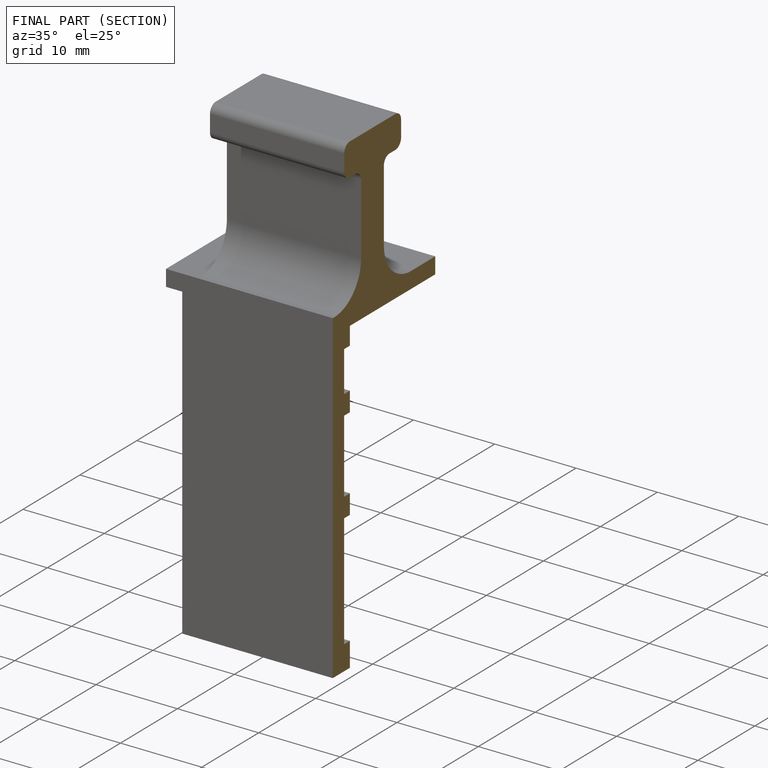
[diagram: finished part — half-section view (interior)]
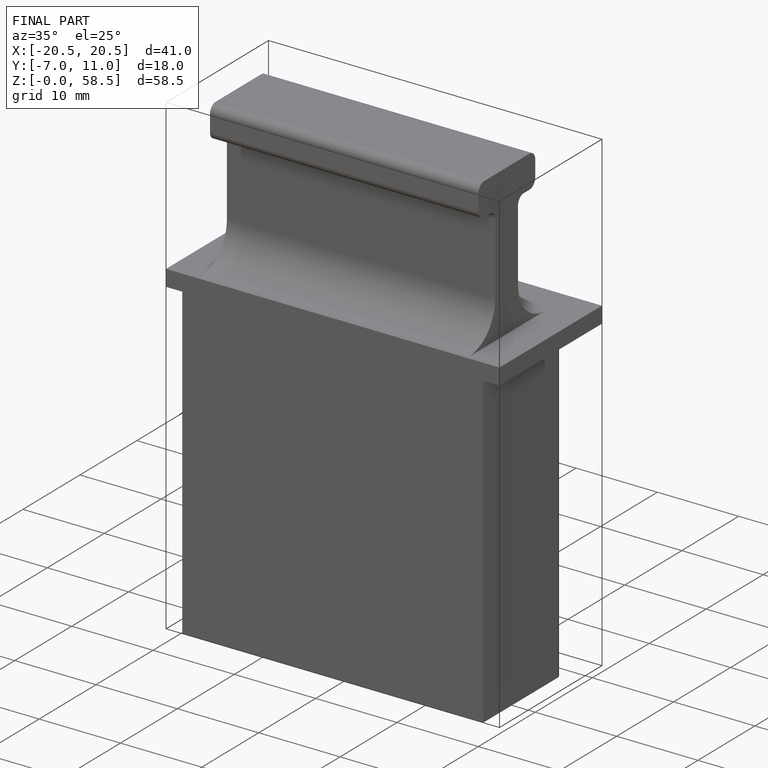
[diagram: finished part — iso view with bounding-box wireframe]
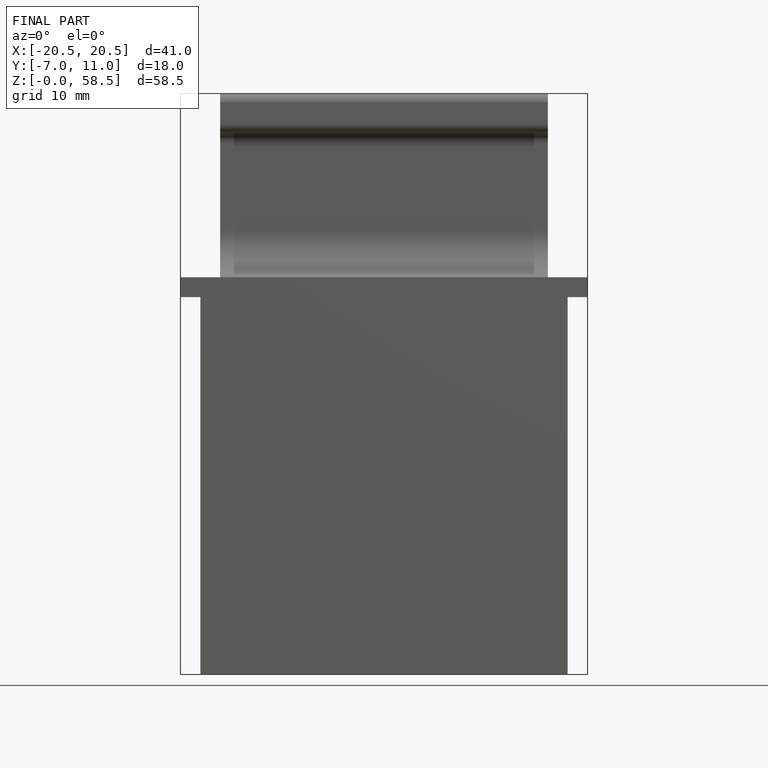
[diagram: finished part — front view with bounding-box wireframe]
